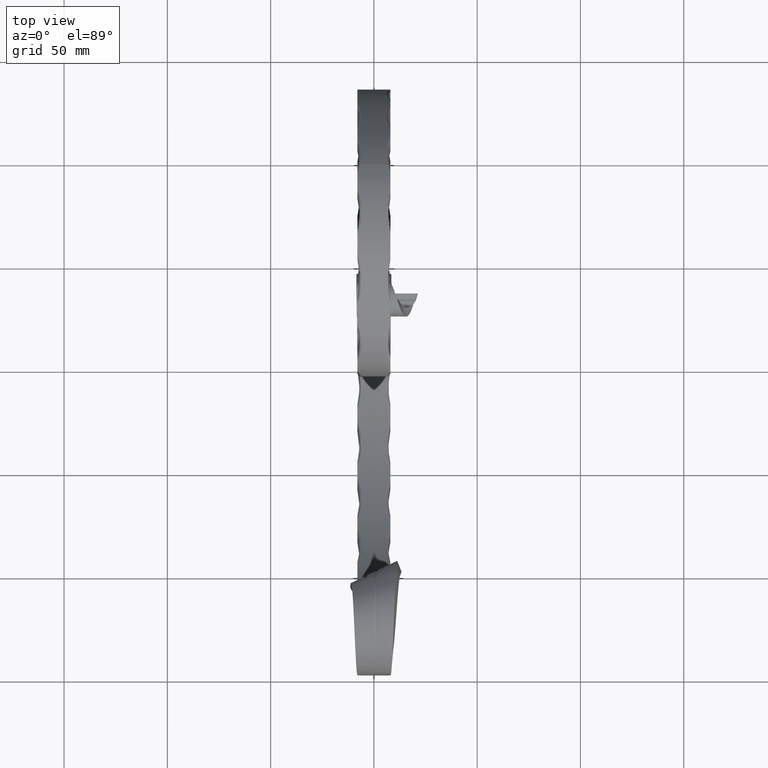
[diagram: clean part render]
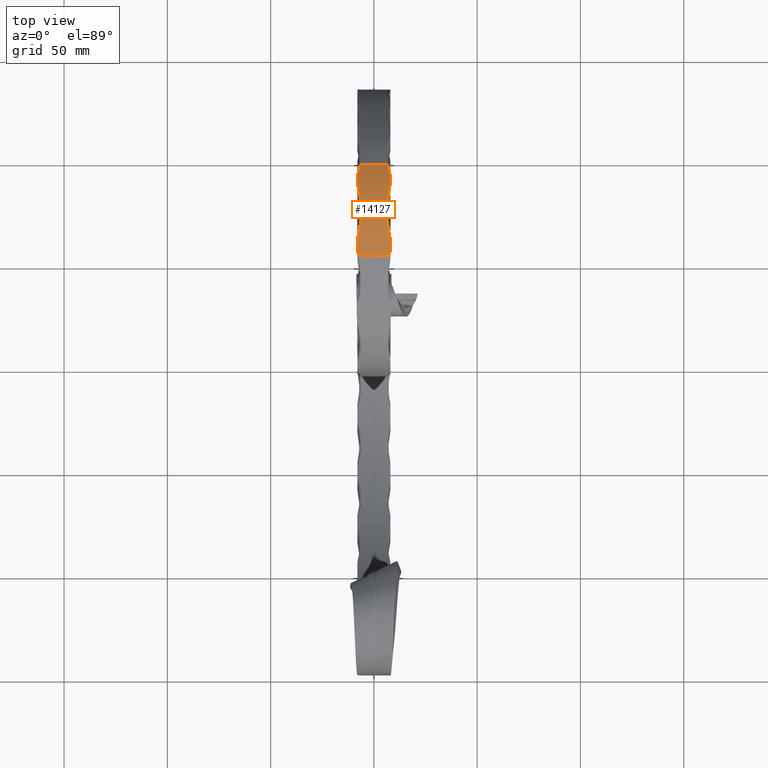
[diagram: same view with one face highlighted and labeled with its STEP entity id]
A machine part, top view. The second image highlights one B-rep face of the part: STEP entity #14127.
In plain terms, the highlighted cylindrical surface (partial cylindrical patch) has radius 67 mm, axis along (-1, -0, -0).
Its self-contained STEP definition (entity closure, byte-faithful):
#258 = VERTEX_POINT ( 'NONE', #8952 ) ;
#259 = CARTESIAN_POINT ( 'NONE',  ( -7.296202449311941500, 202.8430002060402200, 102.5000000000000900 ) ) ;
#330 = VERTEX_POINT ( 'NONE', #22592 ) ;
#432 = DIRECTION ( 'NONE',  ( -1.000000000000000000, -0.0000000000000000000, -0.0000000000000000000 ) ) ;
#657 = CARTESIAN_POINT ( 'NONE',  ( 7.505056340769587400, 203.7705587690115000, 102.5000000000001000 ) ) ;
#710 = DIRECTION ( 'NONE',  ( 0.0000000000000000000, 0.0000000000000000000, 1.000000000000000000 ) ) ;
#977 = CARTESIAN_POINT ( 'NONE',  ( 8.000000000000000000, 202.8430002060254400, 35.50000000000010700 ) ) ;
#1193 = LINE ( 'NONE', #5315, #5392 ) ;
#1242 = EDGE_CURVE ( 'NONE', #8544, #258, #14591, .T. ) ;
#1605 = CARTESIAN_POINT ( 'NONE',  ( -6.011245128764381100, 222.2219059080560400, 99.68506891351907500 ) ) ;
#1967 = CARTESIAN_POINT ( 'NONE',  ( 6.868695608165126000, 215.0739495865283600, 101.4194956576934200 ) ) ;
#2136 = CARTESIAN_POINT ( 'NONE',  ( -8.000000000000000000, 202.8430002060254400, 35.50000000000010700 ) ) ;
#2429 = VERTEX_POINT ( 'NONE', #11868 ) ;
#2456 = CARTESIAN_POINT ( 'NONE',  ( 7.296202449308612600, 202.8430002060254400, 102.5000000000001000 ) ) ;
#2535 = CARTESIAN_POINT ( 'NONE',  ( -8.000000000000000000, 241.5498873879008400, 90.18799580062868400 ) ) ;
#2880 = CARTESIAN_POINT ( 'NONE',  ( 8.000000000000000000, 205.6187882860077100, 102.4424753092910400 ) ) ;
#2896 = ORIENTED_EDGE ( 'NONE', *, *, #15842, .F. ) ;
#2898 = EDGE_CURVE ( 'NONE', #11922, #8820, #9759, .T. ) ;
#3044 = DIRECTION ( 'NONE',  ( 0.0000000000000000000, 0.0000000000000000000, 1.000000000000000000 ) ) ;
#3303 = CIRCLE ( 'NONE', #15508, 66.99999999999997200 ) ;
#3672 = CARTESIAN_POINT ( 'NONE',  ( -6.868695608166205200, 215.0739495865224500, 101.4194956576945700 ) ) ;
#4120 = CARTESIAN_POINT ( 'NONE',  ( 5.995126669343842500, 225.7731532525644100, 98.46645412974005800 ) ) ;
#4205 = DIRECTION ( 'NONE',  ( 0.0000000000000000000, 0.0000000000000000000, 1.000000000000000000 ) ) ;
#4238 = B_SPLINE_CURVE_WITH_KNOTS ( 'NONE', 3,
 ( #19396, #5000, #21483, #9135 ),
 .UNSPECIFIED., .F., .F.,
 ( 4, 4 ),
 ( 1.734723475976807100E-018, 0.007457883959128805200 ),
 .UNSPECIFIED. ) ;
#4460 = CARTESIAN_POINT ( 'NONE',  ( 6.512867358713239500, 247.2759116238855800, 85.64694789249493600 ) ) ;
#4915 = DIRECTION ( 'NONE',  ( -1.000000000000000000, -0.0000000000000000000, -0.0000000000000000000 ) ) ;
#4995 = CARTESIAN_POINT ( 'NONE',  ( -6.512867358713238600, 247.2759116238855800, 85.64694789249493600 ) ) ;
#5000 = CARTESIAN_POINT ( 'NONE',  ( -6.851995883156778400, 245.4260295199540000, 87.28604361241170300 ) ) ;
#5082 = CARTESIAN_POINT ( 'NONE',  ( -8.000000000000000000, 237.8582526986257300, 92.62208060705999900 ) ) ;
#5278 = CYLINDRICAL_SURFACE ( 'NONE', #19841, 66.99999999999997200 ) ;
#5315 = CARTESIAN_POINT ( 'NONE',  ( 8.000000000000000000, 247.2759116238855800, 85.64694789249493600 ) ) ;
#5392 = VECTOR ( 'NONE', #25920, 1000.000000000000000 ) ;
#5696 = EDGE_CURVE ( 'NONE', #21588, #20909, #19186, .T. ) ;
#5750 = ORIENTED_EDGE ( 'NONE', *, *, #17490, .T. ) ;
#5772 = CARTESIAN_POINT ( 'NONE',  ( -8.000000000000000000, 210.2749611848459800, 102.0865298390695700 ) ) ;
#5845 = CARTESIAN_POINT ( 'NONE',  ( 7.351557634613537400, 243.5158325500400700, 88.79654569384304400 ) ) ;
#5923 = FACE_OUTER_BOUND ( 'NONE', #9313, .T. ) ;
#6203 = CARTESIAN_POINT ( 'NONE',  ( 6.194895933060236900, 229.2303675162223700, 97.09736008109715000 ) ) ;
#6941 = CARTESIAN_POINT ( 'NONE',  ( 0.0000000000000000000, 202.8430002060254400, 35.50000000000010700 ) ) ;
#6974 = CARTESIAN_POINT ( 'NONE',  ( -7.296202449311941500, 202.8430002060402200, 102.5000000000000900 ) ) ;
#7250 = B_SPLINE_CURVE_WITH_KNOTS ( 'NONE', 3,
 ( #20241, #5845, #24379, #12037 ),
 .UNSPECIFIED., .F., .F.,
 ( 4, 4 ),
 ( 0.0000000000000000000, 0.007457883959128770500 ),
 .UNSPECIFIED. ) ;
#7743 = CARTESIAN_POINT ( 'NONE',  ( -7.320069584008341400, 235.8030337368835800, 93.88190885750516700 ) ) ;
#8272 = CARTESIAN_POINT ( 'NONE',  ( 6.817397871915875200, 233.6709408619924200, 95.03666576371115600 ) ) ;
#8544 = VERTEX_POINT ( 'NONE', #22938 ) ;
#8731 = AXIS2_PLACEMENT_3D ( 'NONE', #977, #15375, #3044 ) ;
#8820 = VERTEX_POINT ( 'NONE', #6974 ) ;
#8952 = CARTESIAN_POINT ( 'NONE',  ( 8.000000000000000000, 237.8582526986257600, 92.62208060705998500 ) ) ;
#9135 = CARTESIAN_POINT ( 'NONE',  ( -8.000000000000000000, 241.5498873879008400, 90.18799580062868400 ) ) ;
#9313 = EDGE_LOOP ( 'NONE', ( #20464, #19413, #12135, #20759, #13433, #5750, #17904, #9644, #2896, #19600, #17351, #15461 ) ) ;
#9644 = ORIENTED_EDGE ( 'NONE', *, *, #20706, .T. ) ;
#9759 = LINE ( 'NONE', #9766, #20068 ) ;
#9766 = CARTESIAN_POINT ( 'NONE',  ( 0.0000000000000000000, 202.8430002060254400, 102.5000000000000900 ) ) ;
#9789 = VERTEX_POINT ( 'NONE', #4995 ) ;
#10013 = VERTEX_POINT ( 'NONE', #2535 ) ;
#10358 = CARTESIAN_POINT ( 'NONE',  ( 8.000000000000000000, 237.8582526986257600, 92.62208060705998500 ) ) ;
#11618 = CARTESIAN_POINT ( 'NONE',  ( -8.000000000000000000, 210.2749611848459800, 102.0865298390695700 ) ) ;
#11868 = CARTESIAN_POINT ( 'NONE',  ( -8.000000000000000000, 205.6187882860077400, 102.4424753092910400 ) ) ;
#11882 = CARTESIAN_POINT ( 'NONE',  ( -6.194895933060002400, 229.2303675162201000, 97.09736008109815900 ) ) ;
#11922 = VERTEX_POINT ( 'NONE', #22031 ) ;
#12037 = CARTESIAN_POINT ( 'NONE',  ( 6.512867358713239500, 247.2759116238855800, 85.64694789249493600 ) ) ;
#12135 = ORIENTED_EDGE ( 'NONE', *, *, #18590, .T. ) ;
#12184 = VERTEX_POINT ( 'NONE', #2880 ) ;
#12253 = CARTESIAN_POINT ( 'NONE',  ( 7.360710880215551200, 212.6790715255558800, 101.8181984770938700 ) ) ;
#12428 = CARTESIAN_POINT ( 'NONE',  ( -7.739457100837293000, 204.6958543406707600, 102.4807450182051800 ) ) ;
#12602 = CARTESIAN_POINT ( 'NONE',  ( -7.505056340772078700, 203.7705587690213100, 102.4999999999998900 ) ) ;
#12780 = CARTESIAN_POINT ( 'NONE',  ( -8.000000000000000000, 202.8430002060254400, 35.50000000000010700 ) ) ;
#13199 = CARTESIAN_POINT ( 'NONE',  ( 8.000000000000000000, 205.6187882860077100, 102.4424753092910400 ) ) ;
#13250 = EDGE_CURVE ( 'NONE', #2429, #20909, #18487, .T. ) ;
#13433 = ORIENTED_EDGE ( 'NONE', *, *, #26438, .T. ) ;
#13504 = B_SPLINE_CURVE_WITH_KNOTS ( 'NONE', 3,
 ( #2456, #657, #25513, #13199 ),
 .UNSPECIFIED., .F., .F.,
 ( 4, 4 ),
 ( 0.02677591871238283300, 0.02961275009241730000 ),
 .UNSPECIFIED. ) ;
#13953 = CARTESIAN_POINT ( 'NONE',  ( -5.995126669343768800, 225.7731532525610300, 98.46645412974122300 ) ) ;
#13954 = AXIS2_PLACEMENT_3D ( 'NONE', #2136, #16536, #4205 ) ;
#14127 = ADVANCED_FACE ( 'NONE', ( #5923 ), #5278, .T. ) ;
#14591 = B_SPLINE_CURVE_WITH_KNOTS ( 'NONE', 3,
 ( #26654, #12253, #1967, #16377, #16449, #4120, #18526, #6203, #20612, #8272, #22697, #10358 ),
 .UNSPECIFIED., .F., .F.,
 ( 4, 2, 2, 2, 2, 4 ),
 ( 2.309984773146326600E-016, 0.007403187523102778400, 0.01480637504620532600, 0.01850796880775664200, 0.02220956256930795400, 0.02961275009241050300 ),
 .UNSPECIFIED. ) ;
#14835 = DIRECTION ( 'NONE',  ( 0.0000000000000000000, 0.0000000000000000000, 1.000000000000000000 ) ) ;
#15375 = DIRECTION ( 'NONE',  ( -1.000000000000000000, -0.0000000000000000000, -0.0000000000000000000 ) ) ;
#15461 = ORIENTED_EDGE ( 'NONE', *, *, #22030, .T. ) ;
#15508 = AXIS2_PLACEMENT_3D ( 'NONE', #12780, #432, #14835 ) ;
#15842 = EDGE_CURVE ( 'NONE', #21588, #10013, #3303, .T. ) ;
#16014 = CARTESIAN_POINT ( 'NONE',  ( -6.194070125118652300, 219.8453690681149100, 100.3528756771089000 ) ) ;
#16377 = CARTESIAN_POINT ( 'NONE',  ( 6.194070125118202000, 219.8453690681196800, 100.3528756771076000 ) ) ;
#16449 = CARTESIAN_POINT ( 'NONE',  ( 6.011245128764187500, 222.2219059080602500, 99.68506891351782400 ) ) ;
#16536 = DIRECTION ( 'NONE',  ( -1.000000000000000000, -0.0000000000000000000, -0.0000000000000000000 ) ) ;
#17232 = CARTESIAN_POINT ( 'NONE',  ( 8.000000000000000000, 202.8430002060254400, 35.50000000000010700 ) ) ;
#17351 = ORIENTED_EDGE ( 'NONE', *, *, #13250, .F. ) ;
#17490 = EDGE_CURVE ( 'NONE', #330, #23816, #7250, .T. ) ;
#17904 = ORIENTED_EDGE ( 'NONE', *, *, #23658, .T. ) ;
#18086 = CARTESIAN_POINT ( 'NONE',  ( -7.360710880216957200, 212.6790715255494900, 101.8181984770948200 ) ) ;
#18487 = CIRCLE ( 'NONE', #13954, 66.99999999999997200 ) ;
#18526 = CARTESIAN_POINT ( 'NONE',  ( 6.033200539608979600, 226.9403487507434000, 98.02875910841329700 ) ) ;
#18590 = EDGE_CURVE ( 'NONE', #12184, #8544, #22296, .T. ) ;
#19186 = B_SPLINE_CURVE_WITH_KNOTS ( 'NONE', 3,
 ( #22163, #7743, #20077, #24222, #11882, #26277, #13953, #1605, #16014, #3672, #18086, #5772 ),
 .UNSPECIFIED., .F., .F.,
 ( 4, 2, 2, 2, 2, 4 ),
 ( 0.0000000000000000000, 0.007401600909897604700, 0.01110240136484636100, 0.01480320181979511700, 0.02220480272969270800, 0.02960640363959030100 ),
 .UNSPECIFIED. ) ;
#19259 = DIRECTION ( 'NONE',  ( -1.000000000000000000, -0.0000000000000000000, -0.0000000000000000000 ) ) ;
#19307 = DIRECTION ( 'NONE',  ( 0.0000000000000000000, 0.0000000000000000000, 1.000000000000000000 ) ) ;
#19396 = CARTESIAN_POINT ( 'NONE',  ( -6.512867358713238600, 247.2759116238855800, 85.64694789249493600 ) ) ;
#19413 = ORIENTED_EDGE ( 'NONE', *, *, #21530, .T. ) ;
#19600 = ORIENTED_EDGE ( 'NONE', *, *, #5696, .T. ) ;
#19841 = AXIS2_PLACEMENT_3D ( 'NONE', #6941, #19259, #710 ) ;
#20068 = VECTOR ( 'NONE', #21087, 1000.000000000000000 ) ;
#20077 = CARTESIAN_POINT ( 'NONE',  ( -6.817397871915609600, 233.6709408619911400, 95.03666576371172400 ) ) ;
#20241 = CARTESIAN_POINT ( 'NONE',  ( 8.000000000000000000, 241.5498873879008700, 90.18799580062867000 ) ) ;
#20464 = ORIENTED_EDGE ( 'NONE', *, *, #2898, .F. ) ;
#20612 = CARTESIAN_POINT ( 'NONE',  ( 6.318505203639409400, 230.3552414089709000, 96.60295171125427800 ) ) ;
#20706 = EDGE_CURVE ( 'NONE', #9789, #10013, #4238, .T. ) ;
#20759 = ORIENTED_EDGE ( 'NONE', *, *, #1242, .T. ) ;
#20909 = VERTEX_POINT ( 'NONE', #11618 ) ;
#21087 = DIRECTION ( 'NONE',  ( -1.000000000000000000, -0.0000000000000000000, -0.0000000000000000000 ) ) ;
#21483 = CARTESIAN_POINT ( 'NONE',  ( -7.351557634613554300, 243.5158325500400700, 88.79654569384304400 ) ) ;
#21530 = EDGE_CURVE ( 'NONE', #11922, #12184, #13504, .T. ) ;
#21588 = VERTEX_POINT ( 'NONE', #5082 ) ;
#21934 = B_SPLINE_CURVE_WITH_KNOTS ( 'NONE', 3,
 ( #22885, #12428, #12602, #259 ),
 .UNSPECIFIED., .F., .F.,
 ( 4, 4 ),
 ( 0.0000000000000000000, 0.002836223404857573800 ),
 .UNSPECIFIED. ) ;
#22030 = EDGE_CURVE ( 'NONE', #2429, #8820, #21934, .T. ) ;
#22031 = CARTESIAN_POINT ( 'NONE',  ( 7.296202449308612600, 202.8430002060254400, 102.5000000000001000 ) ) ;
#22163 = CARTESIAN_POINT ( 'NONE',  ( -8.000000000000000000, 237.8582526986257300, 92.62208060705999900 ) ) ;
#22296 = CIRCLE ( 'NONE', #22643, 66.99999999999997200 ) ;
#22436 = CIRCLE ( 'NONE', #8731, 66.99999999999997200 ) ;
#22592 = CARTESIAN_POINT ( 'NONE',  ( 8.000000000000000000, 241.5498873879008700, 90.18799580062867000 ) ) ;
#22643 = AXIS2_PLACEMENT_3D ( 'NONE', #17232, #4915, #19307 ) ;
#22697 = CARTESIAN_POINT ( 'NONE',  ( 7.320069584008522600, 235.8030337368841200, 93.88190885750482600 ) ) ;
#22885 = CARTESIAN_POINT ( 'NONE',  ( -8.000000000000000000, 205.6187882860077400, 102.4424753092910400 ) ) ;
#22938 = CARTESIAN_POINT ( 'NONE',  ( 8.000000000000000000, 210.2749611848528800, 102.0865298390688000 ) ) ;
#23658 = EDGE_CURVE ( 'NONE', #23816, #9789, #1193, .T. ) ;
#23816 = VERTEX_POINT ( 'NONE', #4460 ) ;
#24222 = CARTESIAN_POINT ( 'NONE',  ( -6.318505203639150000, 230.3552414089689100, 96.60295171125515900 ) ) ;
#24379 = CARTESIAN_POINT ( 'NONE',  ( 6.851995883156779300, 245.4260295199540300, 87.28604361241170300 ) ) ;
#25513 = CARTESIAN_POINT ( 'NONE',  ( 7.739457100835906500, 204.6958543406658500, 102.4807450182053700 ) ) ;
#25920 = DIRECTION ( 'NONE',  ( -1.000000000000000000, 0.0000000000000000000, -0.0000000000000000000 ) ) ;
#26277 = CARTESIAN_POINT ( 'NONE',  ( -6.033200539608832200, 226.9403487507403800, 98.02875910841442000 ) ) ;
#26438 = EDGE_CURVE ( 'NONE', #258, #330, #22436, .T. ) ;
#26654 = CARTESIAN_POINT ( 'NONE',  ( 8.000000000000000000, 210.2749611848528800, 102.0865298390688000 ) ) ;